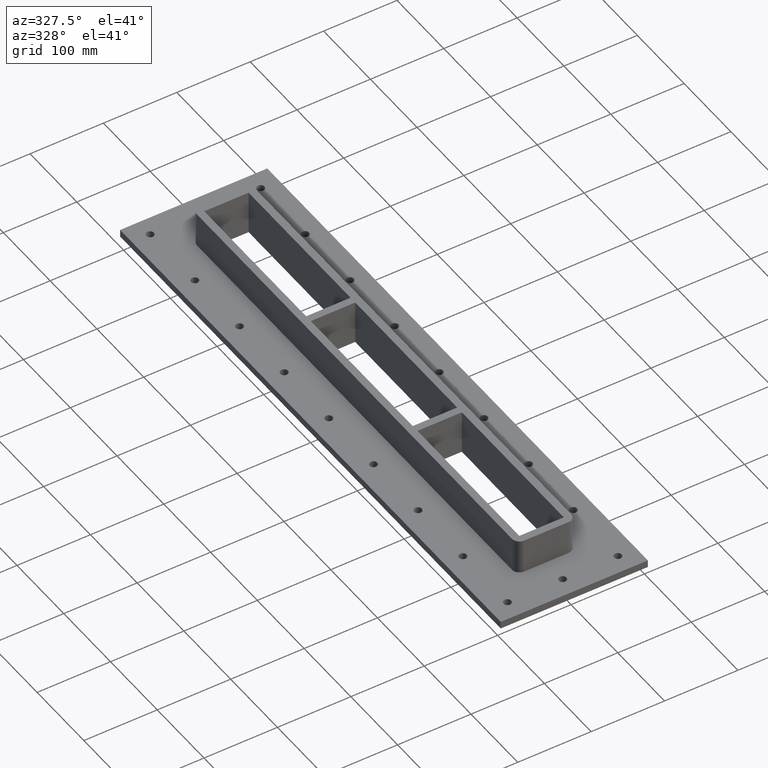
[diagram: clean part render]
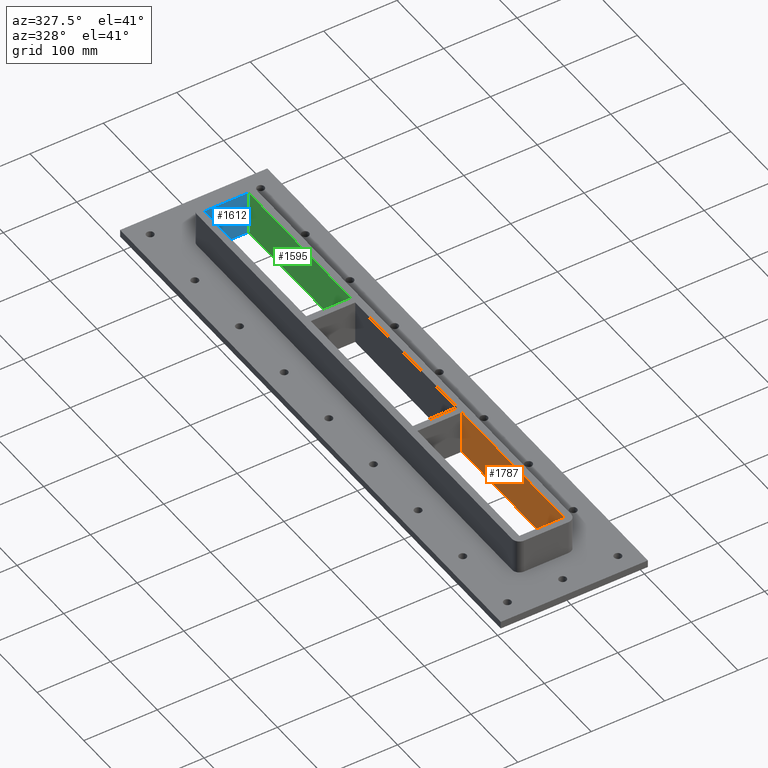
[diagram: same view with three faces highlighted in distinct colors, each labeled with its STEP entity id]
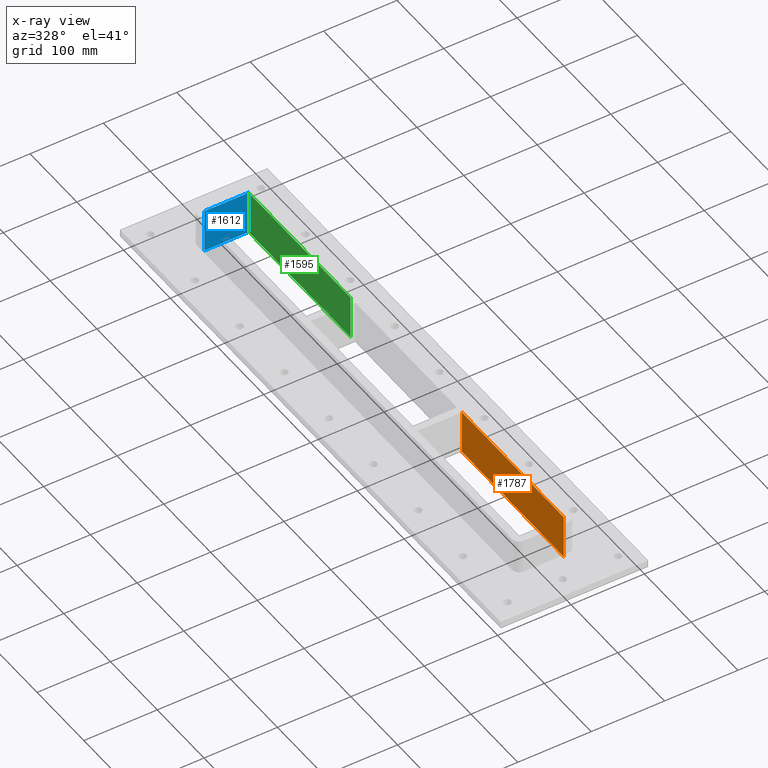
[diagram: x-ray of the same camera — body ghosted, the three highlighted faces saturated]
A machine part, auxiliary view with three faces highlighted in distinct colors.
The next image is the same camera in x-ray (body ghosted, the three faces saturated) — at least one of them is partly hidden behind the body in this view.
Their STEP definitions:

[orange] entity #1787 — the highlighted planar face has unit normal (1, 0, 0).
#1374=CARTESIAN_POINT('',(30.25000000000011,-337.00000000000273,-30.0));
#1375=VERTEX_POINT('',#1374);
#1376=CARTESIAN_POINT('',(30.250000000000075,-119.00000000000273,-30.0));
#1377=VERTEX_POINT('',#1376);
#1378=CARTESIAN_POINT('',(30.25000000000011,-337.00000000000273,-30.0));
#1379=DIRECTION('',(0.0,1.0,0.0));
#1380=VECTOR('',#1379,218.0);
#1381=LINE('',#1378,#1380);
#1382=EDGE_CURVE('',#1375,#1377,#1381,.T.);
#1747=CARTESIAN_POINT('',(30.25000000000011,-337.00000000000273,30.0));
#1748=VERTEX_POINT('',#1747);
#1755=CARTESIAN_POINT('',(30.25000000000011,-337.00000000000273,30.0));
#1756=DIRECTION('',(0.0,0.0,-1.0));
#1757=VECTOR('',#1756,60.0);
#1758=LINE('',#1755,#1757);
#1759=EDGE_CURVE('',#1748,#1375,#1758,.T.);
#1764=CARTESIAN_POINT('',(30.250000000000075,-119.00000000000273,30.0));
#1765=DIRECTION('',(1.0,0.0,0.0));
#1766=DIRECTION('',(0.0,-1.0,0.0));
#1767=AXIS2_PLACEMENT_3D('',#1764,#1765,#1766);
#1768=PLANE('',#1767);
#1769=ORIENTED_EDGE('',*,*,#1382,.F.);
#1770=ORIENTED_EDGE('',*,*,#1759,.F.);
#1771=CARTESIAN_POINT('',(30.250000000000075,-119.00000000000273,30.0));
#1772=VERTEX_POINT('',#1771);
#1773=CARTESIAN_POINT('',(30.250000000000075,-119.00000000000273,30.0));
#1774=DIRECTION('',(0.0,-1.0,0.0));
#1775=VECTOR('',#1774,218.0);
#1776=LINE('',#1773,#1775);
#1777=EDGE_CURVE('',#1772,#1748,#1776,.T.);
#1778=ORIENTED_EDGE('',*,*,#1777,.F.);
#1779=CARTESIAN_POINT('',(30.250000000000075,-119.00000000000273,30.0));
#1780=DIRECTION('',(0.0,0.0,-1.0));
#1781=VECTOR('',#1780,60.0);
#1782=LINE('',#1779,#1781);
#1783=EDGE_CURVE('',#1772,#1377,#1782,.T.);
#1784=ORIENTED_EDGE('',*,*,#1783,.T.);
#1785=EDGE_LOOP('',(#1769,#1770,#1778,#1784));
#1786=FACE_OUTER_BOUND('',#1785,.T.);
#1787=ADVANCED_FACE('',(#1786),#1768,.F.);

[blue] entity #1612 — the highlighted planar face has unit normal (0, 1, 0).
#1306=CARTESIAN_POINT('',(-30.250000000000107,336.99999999999733,-30.0));
#1307=VERTEX_POINT('',#1306);
#1324=CARTESIAN_POINT('',(30.249999999999932,336.99999999999733,-30.0));
#1325=VERTEX_POINT('',#1324);
#1332=CARTESIAN_POINT('',(30.249999999999936,336.99999999999733,-30.0));
#1333=DIRECTION('',(-1.0,0.0,0.0));
#1334=VECTOR('',#1333,60.500000000000043);
#1335=LINE('',#1332,#1334);
#1336=EDGE_CURVE('',#1325,#1307,#1335,.T.);
#1523=CARTESIAN_POINT('',(-30.250000000000107,336.99999999999733,30.0));
#1524=VERTEX_POINT('',#1523);
#1525=CARTESIAN_POINT('',(-30.250000000000107,336.99999999999733,30.0));
#1526=DIRECTION('',(0.0,0.0,-1.0));
#1527=VECTOR('',#1526,60.0);
#1528=LINE('',#1525,#1527);
#1529=EDGE_CURVE('',#1524,#1307,#1528,.T.);
#1579=CARTESIAN_POINT('',(30.249999999999932,336.99999999999733,30.0));
#1580=VERTEX_POINT('',#1579);
#1587=CARTESIAN_POINT('',(30.249999999999932,336.99999999999733,30.0));
#1588=DIRECTION('',(0.0,0.0,-1.0));
#1589=VECTOR('',#1588,60.0);
#1590=LINE('',#1587,#1589);
#1591=EDGE_CURVE('',#1580,#1325,#1590,.T.);
#1596=CARTESIAN_POINT('',(-30.25000000000011,336.99999999999733,30.0));
#1597=DIRECTION('',(0.0,1.0,0.0));
#1598=DIRECTION('',(1.0,0.0,0.0));
#1599=AXIS2_PLACEMENT_3D('',#1596,#1597,#1598);
#1600=PLANE('',#1599);
#1601=ORIENTED_EDGE('',*,*,#1336,.F.);
#1602=ORIENTED_EDGE('',*,*,#1591,.F.);
#1603=CARTESIAN_POINT('',(-30.250000000000107,336.99999999999733,30.0));
#1604=DIRECTION('',(1.0,0.0,0.0));
#1605=VECTOR('',#1604,60.500000000000043);
#1606=LINE('',#1603,#1605);
#1607=EDGE_CURVE('',#1524,#1580,#1606,.T.);
#1608=ORIENTED_EDGE('',*,*,#1607,.F.);
#1609=ORIENTED_EDGE('',*,*,#1529,.T.);
#1610=EDGE_LOOP('',(#1601,#1602,#1608,#1609));
#1611=FACE_OUTER_BOUND('',#1610,.T.);
#1612=ADVANCED_FACE('',(#1611),#1600,.F.);

[green] entity #1595 — the highlighted planar face has unit normal (1, 0, 0).
#1316=CARTESIAN_POINT('',(30.249999999999968,118.99999999999729,-30.0));
#1317=VERTEX_POINT('',#1316);
#1324=CARTESIAN_POINT('',(30.249999999999932,336.99999999999733,-30.0));
#1325=VERTEX_POINT('',#1324);
#1326=CARTESIAN_POINT('',(30.249999999999964,118.99999999999729,-30.0));
#1327=DIRECTION('',(0.0,1.0,0.0));
#1328=VECTOR('',#1327,218.00000000000006);
#1329=LINE('',#1326,#1328);
#1330=EDGE_CURVE('',#1317,#1325,#1329,.T.);
#1555=CARTESIAN_POINT('',(30.249999999999968,118.99999999999729,30.0));
#1556=VERTEX_POINT('',#1555);
#1563=CARTESIAN_POINT('',(30.249999999999968,118.99999999999729,30.0));
#1564=DIRECTION('',(0.0,0.0,-1.0));
#1565=VECTOR('',#1564,60.0);
#1566=LINE('',#1563,#1565);
#1567=EDGE_CURVE('',#1556,#1317,#1566,.T.);
#1572=CARTESIAN_POINT('',(30.249999999999932,336.99999999999733,30.0));
#1573=DIRECTION('',(1.0,0.0,0.0));
#1574=DIRECTION('',(0.0,-1.0,0.0));
#1575=AXIS2_PLACEMENT_3D('',#1572,#1573,#1574);
#1576=PLANE('',#1575);
#1577=ORIENTED_EDGE('',*,*,#1330,.F.);
#1578=ORIENTED_EDGE('',*,*,#1567,.F.);
#1579=CARTESIAN_POINT('',(30.249999999999932,336.99999999999733,30.0));
#1580=VERTEX_POINT('',#1579);
#1581=CARTESIAN_POINT('',(30.249999999999929,336.99999999999733,30.0));
#1582=DIRECTION('',(0.0,-1.0,0.0));
#1583=VECTOR('',#1582,218.00000000000006);
#1584=LINE('',#1581,#1583);
#1585=EDGE_CURVE('',#1580,#1556,#1584,.T.);
#1586=ORIENTED_EDGE('',*,*,#1585,.F.);
#1587=CARTESIAN_POINT('',(30.249999999999932,336.99999999999733,30.0));
#1588=DIRECTION('',(0.0,0.0,-1.0));
#1589=VECTOR('',#1588,60.0);
#1590=LINE('',#1587,#1589);
#1591=EDGE_CURVE('',#1580,#1325,#1590,.T.);
#1592=ORIENTED_EDGE('',*,*,#1591,.T.);
#1593=EDGE_LOOP('',(#1577,#1578,#1586,#1592));
#1594=FACE_OUTER_BOUND('',#1593,.T.);
#1595=ADVANCED_FACE('',(#1594),#1576,.F.);